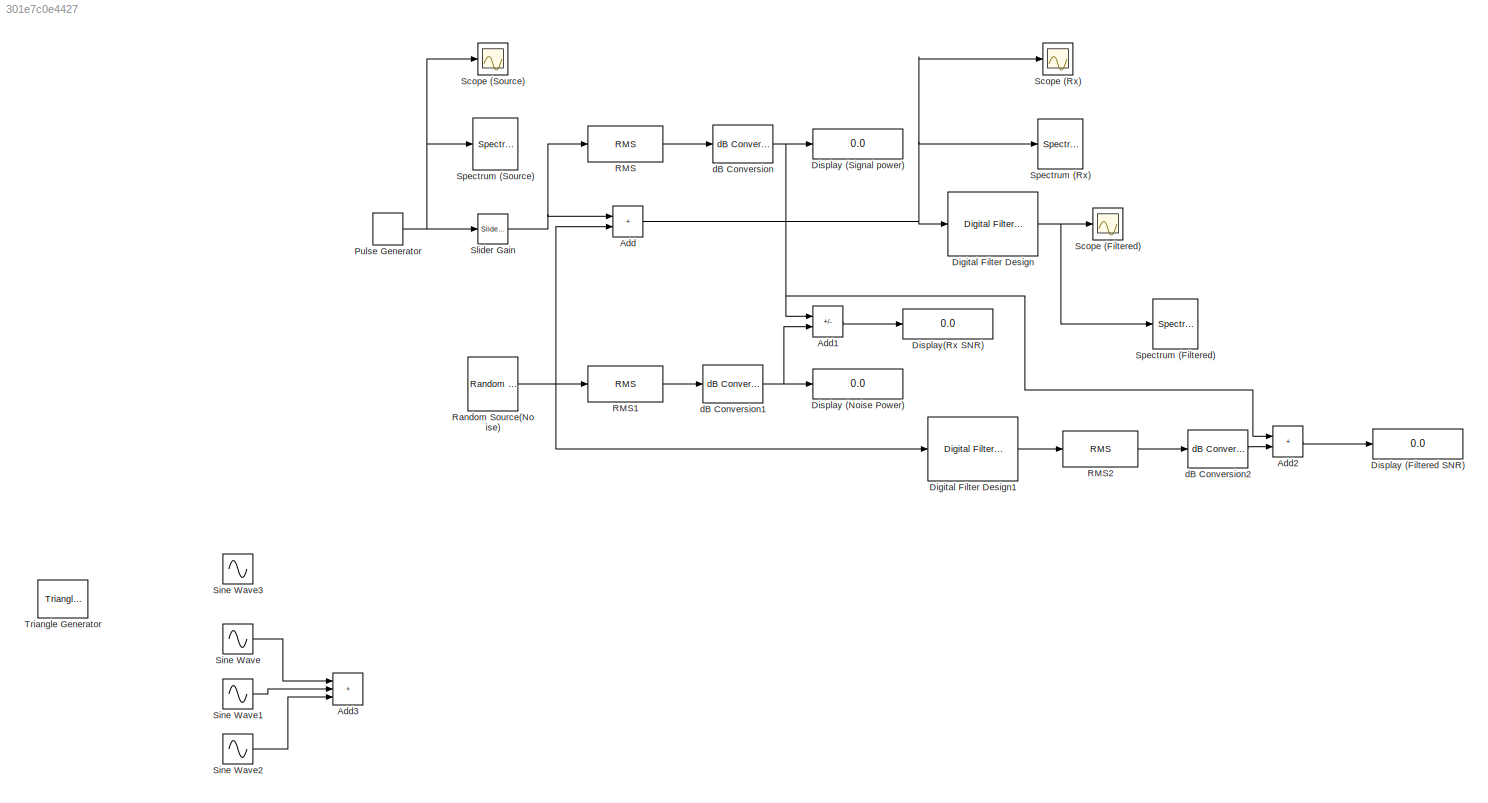
MODEL slx_301e7c0e4427
KIND model
CONFIG AbsTol = auto
CONFIG EnableMultiTasking = off
CONFIG FixedStep = auto
CONFIG MaxStep = auto
CONFIG MinStep = auto
CONFIG RelTol = 1e-3
CONFIG SampleTimeConstraint = Unconstrained
CONFIG SolverName = VariableStepAuto
CONFIG StartTime = 0.0
CONFIG StopTime = 10.0
BLOCK [Sum] Add
  IconShape = rectangular
BLOCK [Sum] Add1
  IconShape = rectangular
  Inputs = +-
BLOCK [Sum] Add2
  IconShape = rectangular
BLOCK [Sum] Add3
  IconShape = rectangular
  Inputs = +++
BLOCK [Reference] Digital Filter Design  REF=dspfdesign/Digital
Filter Design
  SourceBlock = dspfdesign/Digital\nFilter Design
  SourceType = Digital Filter Design
  UserDataPersistent = on
BLOCK [Reference] Digital Filter Design1  REF=dspfdesign/Digital
Filter Design
  SourceBlock = dspfdesign/Digital\nFilter Design
  SourceType = Digital Filter Design
  UserDataPersistent = on
BLOCK [Display] Display (Filtered SNR)
  Decimation = 1
BLOCK [Display] Display (Noise Power)
  Decimation = 1
BLOCK [Display] Display (Signal power)
  Decimation = 1
BLOCK [Display] Display(Rx SNR)
  Decimation = 1
BLOCK [DiscretePulseGenerator] Pulse Generator
  Period = 5000
  PulseWidth = 1000
  SampleTime = 1e-4
BLOCK [Reference] RMS  REF=dspstat3/RMS
  SourceBlock = dspstat3/RMS
  SourceType = RMS
  UserDataPersistent = on
BLOCK [Reference] RMS1  REF=dspstat3/RMS
  SourceBlock = dspstat3/RMS
  SourceType = RMS
  UserDataPersistent = on
BLOCK [Reference] RMS2  REF=dspstat3/RMS
  SourceBlock = dspstat3/RMS
  SourceType = RMS
  UserDataPersistent = on
BLOCK [Reference] Random Source(Noise)  REF=dspsrcs4/Random
Source
  SourceBlock = dspsrcs4/Random\nSource
  SourceType = dsp.simulink.RandomSource
BLOCK [Scope] Scope (Filtered)
  Floating = off
  NumInputPorts = 1
  ScopeSpecificationString = Simulink.scopes.TimeScopeBlockCfg('CurrentConfiguration', extmgr.ConfigurationSet(extmgr.Configuration('Core','General UI',true),extmgr.Configuration('Core','Source UI',true),extmgr.Configuration('Sources','WiredSimulink',true,'DataLoggingVariableName','ScopeData2'),extmgr.Configuration('Visuals','Time Domain',true,'SerializedDisplays',{struct('MinYLimReal','-39.79078','MaxYLimReal','39.46603','YL...<+1561ch>
BLOCK [Scope] Scope (Rx)
  Floating = off
  NumInputPorts = 1
  ScopeSpecificationString = Simulink.scopes.TimeScopeBlockCfg('CurrentConfiguration', extmgr.ConfigurationSet(extmgr.Configuration('Core','General UI',true),extmgr.Configuration('Core','Source UI',true),extmgr.Configuration('Sources','WiredSimulink',true,'DataLoggingVariableName','ScopeData1'),extmgr.Configuration('Visuals','Time Domain',true,'SerializedDisplays',{struct('MinYLimReal','-52.53442','MaxYLimReal','51.66812','YL...<+1558ch>
BLOCK [Scope] Scope (Source)
  Floating = off
  NumInputPorts = 1
  ScopeSpecificationString = Simulink.scopes.TimeScopeBlockCfg('CurrentConfiguration', extmgr.ConfigurationSet(extmgr.Configuration('Core','General UI',true),extmgr.Configuration('Core','Source UI',true),extmgr.Configuration('Sources','WiredSimulink',true),extmgr.Configuration('Visuals','Time Domain',true,'SerializedDisplays',{struct('MinYLimReal','-4.81694','MaxYLimReal','4.81694','YLabelReal','','MinYLimMag','0.00000','MaxY...<+1499ch>
BLOCK [Sin] Sine Wave
  Amplitude = 0.5
  SampleTime = 1e-4
  Samples = 1000
  SineType = Sample based
BLOCK [Sin] Sine Wave1
  Amplitude = 2
  SampleTime = 1e-4
  Samples = 500
  SineType = Sample based
BLOCK [Sin] Sine Wave2
  Amplitude = 1.5
  SampleTime = 1e-4
  Samples = 100
  SineType = Sample based
BLOCK [Sin] Sine Wave3
  SampleTime = 1e-4
  Samples = 100
  SineType = Sample based
BLOCK [Reference] Slider Gain  REF=simulink/Math
Operations/Slider
Gain
  SourceBlock = simulink/Math\nOperations/Slider\nGain
  SourceType = Slider Gain
BLOCK [SpectrumAnalyzer] Spectrum (Filtered)
  GraphicalSettings = {"GraphicalSettings":{"Style":{"BackgroundColor":[0.12941176470588237,0.12941176470588237,0.12941176470588237],"AxesColor":[0.07058823529411765,0.07058823529411765,0.07058823529411765],"LabelsColor":[0.8509803921568627,0.8509803921568627,0.8509803921568627],"PreserveColors":false,"Visible":[true],"LineStyle":["-"],"LineColor":[[1,0.9098039215686274,0.39215686274509803]],"LineWidth":[1.5],"Marker":...<+945ch>
  ScopeFrameLocation = window
  WasSavedAsWebScope = on
  WindowPosition = [229.000000,167.000000,800.000000,500.000000,]
  YLimits = [-25.82014179,57.92164035]
BLOCK [SpectrumAnalyzer] Spectrum (Rx)
  GraphicalSettings = {"GraphicalSettings":{"Style":{"BackgroundColor":[0.12941176470588237,0.12941176470588237,0.12941176470588237],"AxesColor":[0.07058823529411765,0.07058823529411765,0.07058823529411765],"LabelsColor":[0.8509803921568627,0.8509803921568627,0.8509803921568627],"PreserveColors":false,"Visible":[true],"LineStyle":["-"],"LineColor":[[1,0.9098039215686274,0.39215686274509803]],"LineWidth":[1.5],"Marker":...<+945ch>
  ScopeFrameLocation = window
  SelectedToolstripTab = spectrumAnalyzerToolstrip.measurementsTab
  WasSavedAsWebScope = on
  WindowPosition = [240.000000,150.000000,800.000000,500.000000,]
  YLimits = [-14.02574207,49.38874797]
BLOCK [SpectrumAnalyzer] Spectrum (Source)
  GraphicalSettings = {"GraphicalSettings":{"Style":{"BackgroundColor":[0.12941176470588237,0.12941176470588237,0.12941176470588237],"AxesColor":[0.07058823529411765,0.07058823529411765,0.07058823529411765],"LabelsColor":[0.8509803921568627,0.8509803921568627,0.8509803921568627],"PreserveColors":false,"Visible":[true],"LineStyle":["-"],"LineColor":[[1,0.9098039215686274,0.39215686274509803]],"LineWidth":[1.5],"Marker":...<+943ch>
  RBW = 3
  RBWSource = Property
  ScopeFrameLocation = window
  SelectedToolstripTab = spectrumAnalyzerToolstrip.estimationTab
  WasSavedAsWebScope = on
  WindowPosition = [1.000000,49.000000,1280.000000,729.000000,]
  YLimits = [-55.28859429,28.04167515]
BLOCK [Reference] Triangle Generator  REF=spsTriangleGeneratorLib/Triangle
Generator
  LibrarySourceBlock = sps_lib/Sources/Signal Generator Sources/Triangle\nGenerator
  SourceBlock = spsTriangleGeneratorLib/Triangle\nGenerator
  SourceType = Triangle Generator
BLOCK [Reference] dB Conversion  REF=dspmathops/dB Conversion
  SourceBlock = dspmathops/dB Conversion
  SourceType = dB Conversion
BLOCK [Reference] dB Conversion1  REF=dspmathops/dB Conversion
  SourceBlock = dspmathops/dB Conversion
  SourceType = dB Conversion
BLOCK [Reference] dB Conversion2  REF=dspmathops/dB Conversion
  SourceBlock = dspmathops/dB Conversion
  SourceType = dB Conversion
LINE Add1:1 -> Display(Rx SNR):1
LINE Add2:1 -> Display (Filtered SNR):1
NET Add:1 -> Digital Filter Design:1, Scope (Rx):1, Spectrum (Rx):1
LINE Digital Filter Design1:1 -> RMS2:1
NET Digital Filter Design:1 -> Scope (Filtered):1, Spectrum (Filtered):1
NET Pulse Generator:1 -> Scope (Source):1, Slider Gain:1, Spectrum (Source):1
LINE RMS1:1 -> dB Conversion1:1
LINE RMS2:1 -> dB Conversion2:1
LINE RMS:1 -> dB Conversion:1
NET Random Source(Noise):1 -> Add:2, Digital Filter Design1:1, RMS1:1
LINE Sine Wave1:1 -> Add3:2
LINE Sine Wave2:1 -> Add3:3
LINE Sine Wave:1 -> Add3:1
NET Slider Gain:1 -> Add:1, RMS:1
NET dB Conversion1:1 -> Add1:2, Display (Noise Power):1
LINE dB Conversion2:1 -> Add2:2
NET dB Conversion:1 -> Add1:1, Add2:1, Display (Signal power):1
note: NET lines group one-source signal fan-out (src -> all destinations, sorted); 1:1 wires keep LINE
